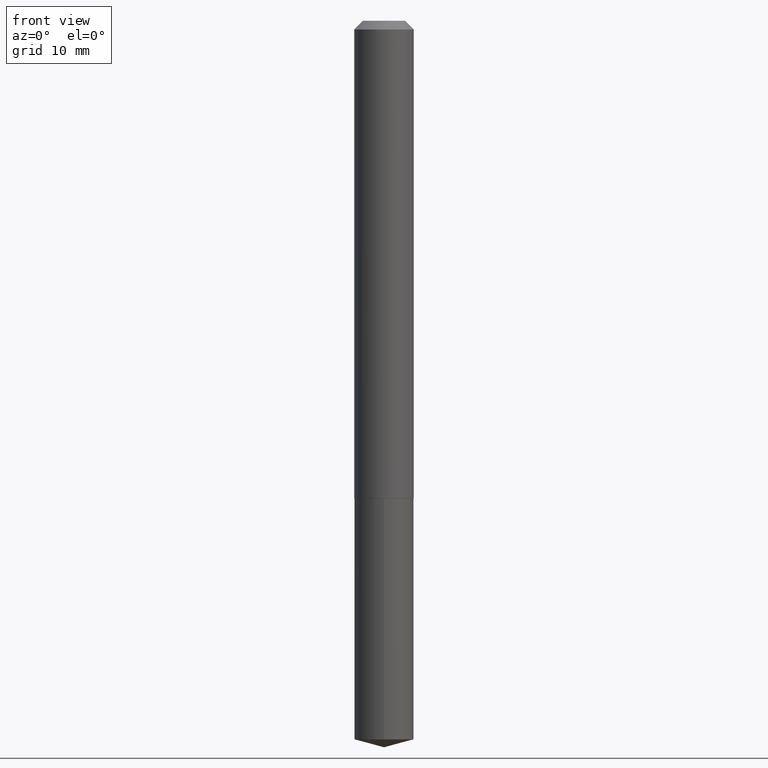
[diagram: clean part render]
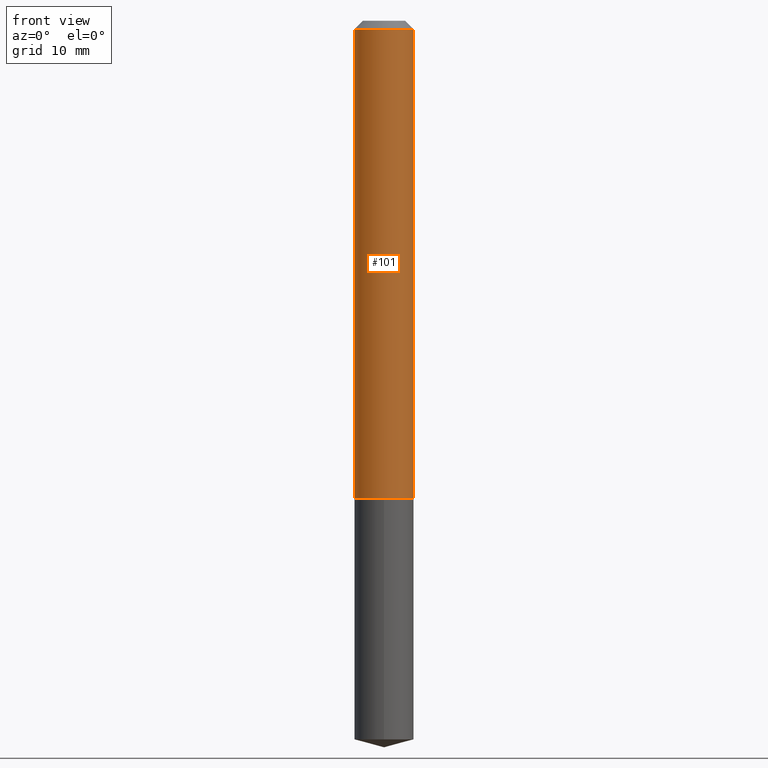
[diagram: same view with one face highlighted and labeled with its STEP entity id]
A machine part, front view. The second image highlights one B-rep face of the part: STEP entity #101.
In plain terms, the highlighted cylindrical surface (edge-blend (fillet) strip) has radius 2.7 mm, axis along (-0, 0, 1).
Its self-contained STEP definition (entity closure, byte-faithful):
#13 = ORIENTED_EDGE ( 'NONE', *, *, #359, .T. ) ;
#16 = VERTEX_POINT ( 'NONE', #117 ) ;
#17 = AXIS2_PLACEMENT_3D ( 'NONE', #357, #390, #269 ) ;
#23 = EDGE_CURVE ( 'NONE', #351, #16, #242, .T. ) ;
#26 = DIRECTION ( 'NONE',  ( 1.000000000000000000, -6.982962677686262766E-15, 0.000000000000000000 ) ) ;
#27 = VECTOR ( 'NONE', #307, 39.37007874015748143 ) ;
#48 = EDGE_LOOP ( 'NONE', ( #228, #310, #13, #316 ) ) ;
#62 = DIRECTION ( 'NONE',  ( 1.000000000000000000, -6.982962677686267499E-15, 0.000000000000000000 ) ) ;
#63 = CARTESIAN_POINT ( 'NONE',  ( 0.1063000000000002415, -6.706088207516028077E-15, -1.708099999999999952 ) ) ;
#74 = AXIS2_PLACEMENT_3D ( 'NONE', #152, #184, #26 ) ;
#89 = EDGE_CURVE ( 'NONE', #174, #314, #249, .T. ) ;
#96 = EDGE_CURVE ( 'NONE', #174, #351, #267, .T. ) ;
#101 = ADVANCED_FACE ( 'NONE', ( #327 ), #154, .T. ) ;
#117 = CARTESIAN_POINT ( 'NONE',  ( 0.1063000000000000056, -8.513977244768991407E-16, -0.03125000000000019429 ) ) ;
#152 = CARTESIAN_POINT ( 'NONE',  ( 4.177105267844832123E-29, -5.963799274877977150E-15, -1.708099999999999952 ) ) ;
#154 = CYLINDRICAL_SURFACE ( 'NONE', #17, 0.1063000000000001166 ) ;
#159 = CARTESIAN_POINT ( 'NONE',  ( -0.1063000000000001166, 7.553069281129873262E-16, -5.228828000940970663E-30 ) ) ;
#174 = VERTEX_POINT ( 'NONE', #240 ) ;
#184 = DIRECTION ( 'NONE',  ( -2.445468806185136597E-29, 3.491481338843145583E-15, 1.000000000000000000 ) ) ;
#212 = DIRECTION ( 'NONE',  ( -2.445468806185136877E-29, 3.491481338843145188E-15, 1.000000000000000000 ) ) ;
#228 = ORIENTED_EDGE ( 'NONE', *, *, #96, .F. ) ;
#240 = CARTESIAN_POINT ( 'NONE',  ( -0.1063000000000002415, -5.208492346764989429E-15, -1.708099999999999952 ) ) ;
#242 = CIRCLE ( 'NONE', #345, 0.1063000000000000056 ) ;
#244 = DIRECTION ( 'NONE',  ( -2.445468806185136597E-29, 3.491481338843145583E-15, 1.000000000000000000 ) ) ;
#249 = CIRCLE ( 'NONE', #74, 0.1063000000000002415 ) ;
#252 = LINE ( 'NONE', #337, #27 ) ;
#267 = LINE ( 'NONE', #159, #278 ) ;
#269 = DIRECTION ( 'NONE',  ( 1.000000000000000000, -6.982962677686266711E-15, 4.876176775795935793E-29 ) ) ;
#278 = VECTOR ( 'NONE', #212, 39.37007874015748143 ) ;
#279 = CARTESIAN_POINT ( 'NONE',  ( -0.1063000000000000056, -2.281147105245424221E-15, -0.03125000000000019429 ) ) ;
#307 = DIRECTION ( 'NONE',  ( -2.445468806185136877E-29, 3.491481338843145188E-15, 1.000000000000000000 ) ) ;
#310 = ORIENTED_EDGE ( 'NONE', *, *, #89, .T. ) ;
#314 = VERTEX_POINT ( 'NONE', #63 ) ;
#316 = ORIENTED_EDGE ( 'NONE', *, *, #23, .F. ) ;
#327 = FACE_OUTER_BOUND ( 'NONE', #48, .T. ) ;
#337 = CARTESIAN_POINT ( 'NONE',  ( 0.1063000000000001166, -7.422889326380509276E-16, 5.183375912671085656E-30 ) ) ;
#345 = AXIS2_PLACEMENT_3D ( 'NONE', #356, #244, #62 ) ;
#351 = VERTEX_POINT ( 'NONE', #279 ) ;
#356 = CARTESIAN_POINT ( 'NONE',  ( 7.642090019328599159E-31, -1.091087918388489774E-16, -0.03125000000000019429 ) ) ;
#357 = CARTESIAN_POINT ( 'NONE',  ( 0.000000000000000000, 0.000000000000000000, 0.000000000000000000 ) ) ;
#359 = EDGE_CURVE ( 'NONE', #314, #16, #252, .T. ) ;
#390 = DIRECTION ( 'NONE',  ( -2.445468806185136597E-29, 3.491481338843145583E-15, 1.000000000000000000 ) ) ;